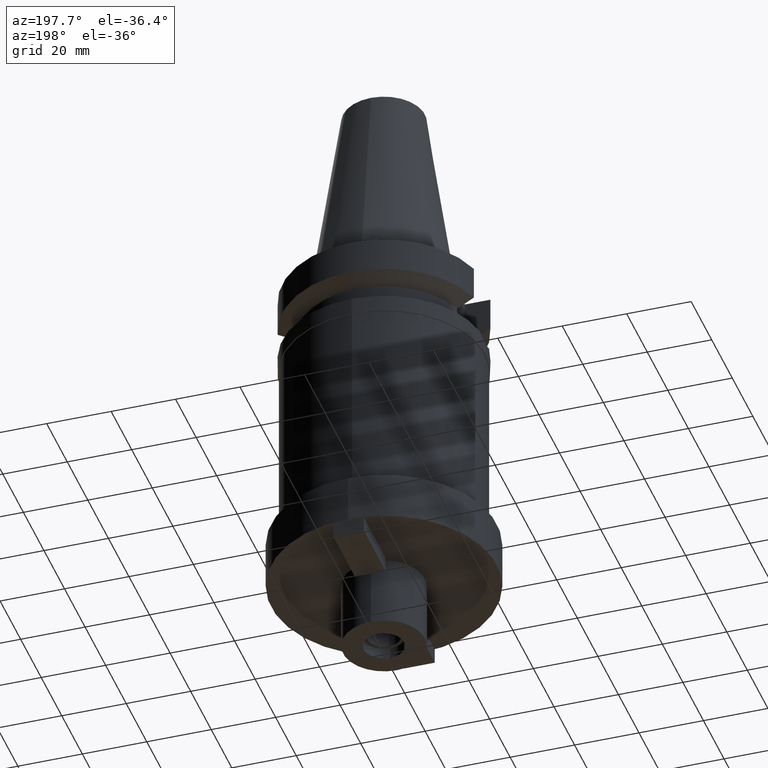
[diagram: clean part render]
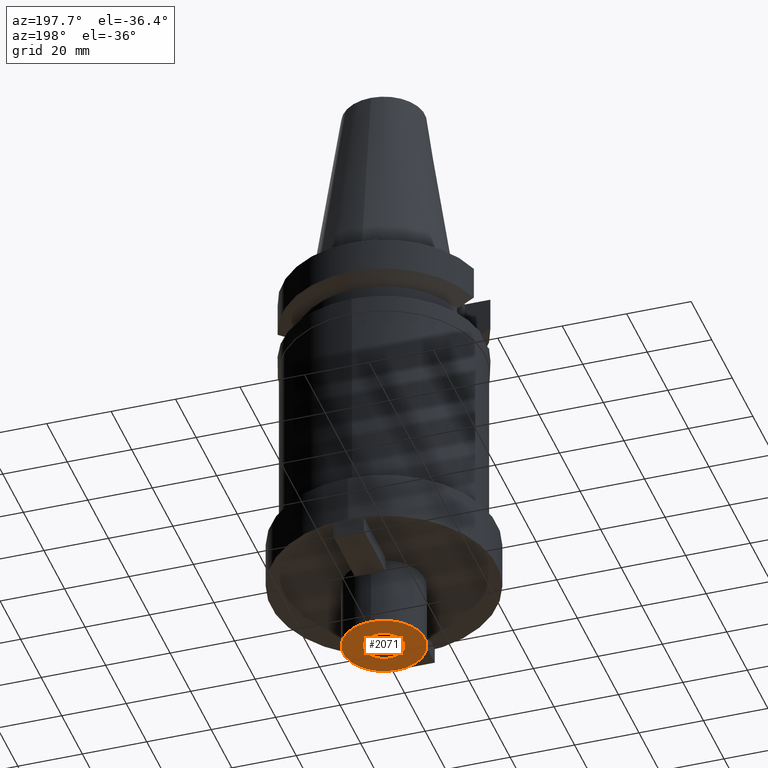
[diagram: same view with one face highlighted and labeled with its STEP entity id]
A machine part, auxiliary view. The second image highlights one B-rep face of the part: STEP entity #2071.
In plain terms, the highlighted planar face has unit normal (0, 0, -1).
Its self-contained STEP definition (entity closure, byte-faithful):
#822=CARTESIAN_POINT('',(0.E0,2.143376827868E-14,-1.27E2));
#823=DIRECTION('',(0.E0,0.E0,1.E0));
#824=DIRECTION('',(0.E0,-1.E0,0.E0));
#825=AXIS2_PLACEMENT_3D('',#822,#823,#824);
#830=CARTESIAN_POINT('',(0.E0,2.143376827868E-14,-1.27E2));
#831=DIRECTION('',(0.E0,0.E0,1.E0));
#832=DIRECTION('',(0.E0,1.E0,0.E0));
#833=AXIS2_PLACEMENT_3D('',#830,#831,#832);
#838=CARTESIAN_POINT('',(0.E0,2.143376827868E-14,-1.27E2));
#839=DIRECTION('',(0.E0,0.E0,-1.E0));
#840=DIRECTION('',(0.E0,-1.E0,0.E0));
#841=AXIS2_PLACEMENT_3D('',#838,#839,#840);
#846=CARTESIAN_POINT('',(0.E0,2.143376827868E-14,-1.27E2));
#847=DIRECTION('',(0.E0,0.E0,-1.E0));
#848=DIRECTION('',(0.E0,1.E0,0.E0));
#849=AXIS2_PLACEMENT_3D('',#846,#847,#848);
#1300=CARTESIAN_POINT('',(0.E0,6.25E0,-1.27E2));
#1301=VERTEX_POINT('',#1300);
#1302=CARTESIAN_POINT('',(0.E0,-6.25E0,-1.27E2));
#1303=VERTEX_POINT('',#1302);
#1304=CARTESIAN_POINT('',(0.E0,-1.27E1,-1.27E2));
#1305=CARTESIAN_POINT('',(0.E0,1.27E1,-1.27E2));
#1306=VERTEX_POINT('',#1304);
#1307=VERTEX_POINT('',#1305);
#2056=CARTESIAN_POINT('',(0.E0,0.E0,-1.27E2));
#2057=DIRECTION('',(0.E0,0.E0,-1.E0));
#2058=DIRECTION('',(0.E0,-1.E0,0.E0));
#2059=AXIS2_PLACEMENT_3D('',#2056,#2057,#2058);
#2060=PLANE('',#2059);
#2061=ORIENTED_EDGE('',*,*,#2049,.T.);
#2062=ORIENTED_EDGE('',*,*,#2038,.T.);
#2063=EDGE_LOOP('',(#2061,#2062));
#2064=FACE_OUTER_BOUND('',#2063,.F.);
#2066=ORIENTED_EDGE('',*,*,#2065,.T.);
#2068=ORIENTED_EDGE('',*,*,#2067,.T.);
#2069=EDGE_LOOP('',(#2066,#2068));
#2070=FACE_BOUND('',#2069,.F.);
#826=CIRCLE('',#825,1.27E1);
#834=CIRCLE('',#833,1.27E1);
#842=CIRCLE('',#841,6.25E0);
#850=CIRCLE('',#849,6.25E0);
#2038=EDGE_CURVE('',#1307,#1306,#834,.T.);
#2049=EDGE_CURVE('',#1306,#1307,#826,.T.);
#2065=EDGE_CURVE('',#1303,#1301,#842,.T.);
#2067=EDGE_CURVE('',#1301,#1303,#850,.T.);
#2071=ADVANCED_FACE('',(#2064,#2070),#2060,.T.);